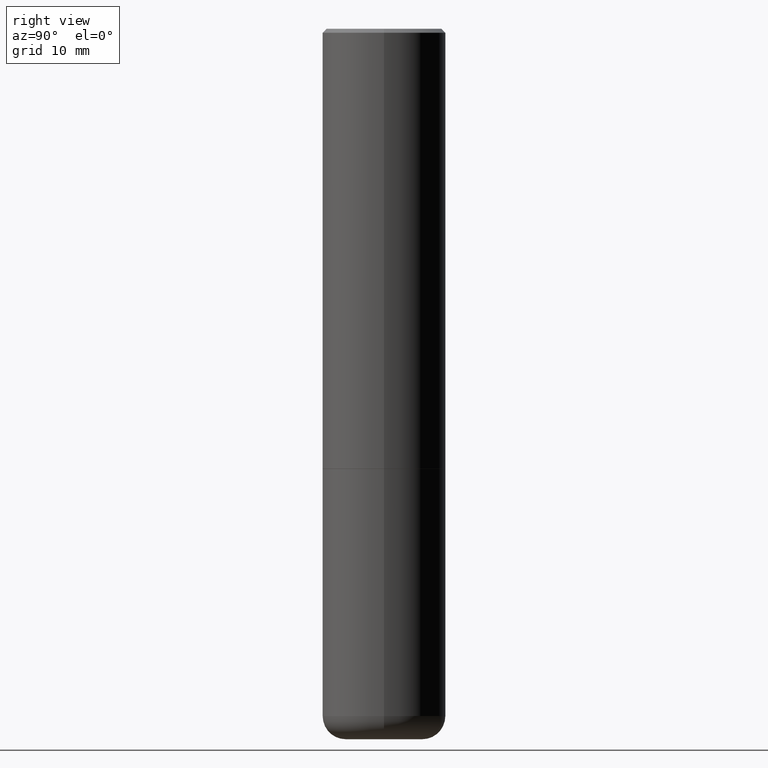
[diagram: clean part render]
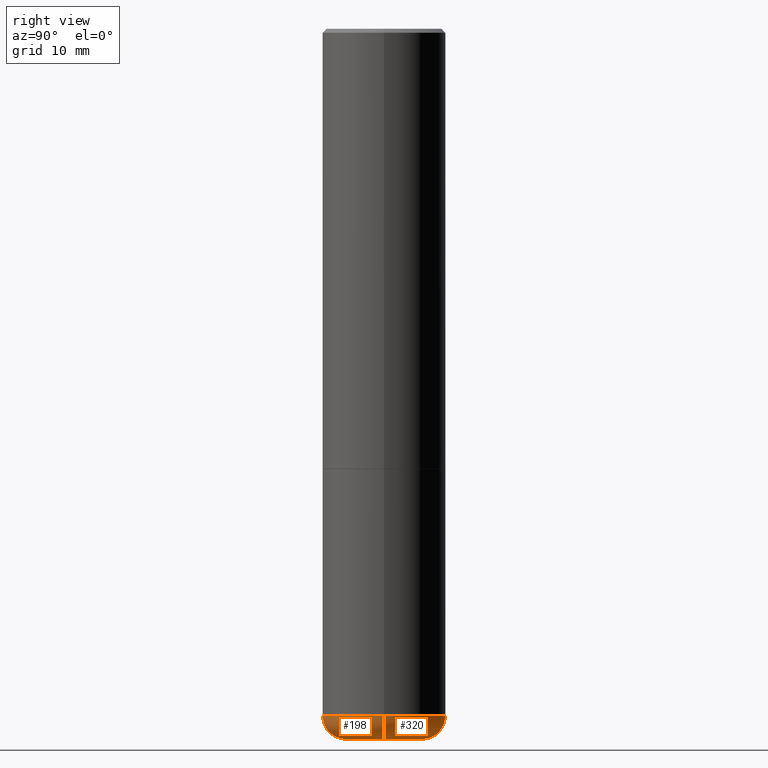
[diagram: same view with one multi-face feature highlighted, each face labeled with its STEP entity id]
A machine part, right view. The highlighted faces form ONE feature: a constant-radius fillet chain: 2 tangent blend faces with common blend radius 2.9997 mm. The faces share edges in the B-rep.
Their STEP definitions:
[1] entity #320 (Torus):
#50 = CARTESIAN_POINT ( 'NONE',  ( -0.3149499999999998967, -9.995947116896063452E-15, -3.503899999999999793 ) ) ;
#51 = VERTEX_POINT ( 'NONE', #135 ) ;
#59 = FACE_OUTER_BOUND ( 'NONE', #141, .T. ) ;
#74 = ORIENTED_EDGE ( 'NONE', *, *, #297, .T. ) ;
#88 = EDGE_CURVE ( 'NONE', #51, #202, #172, .T. ) ;
#106 = DIRECTION ( 'NONE',  ( -2.445468806185136597E-29, 3.491481338843145583E-15, 1.000000000000000000 ) ) ;
#113 = ORIENTED_EDGE ( 'NONE', *, *, #174, .T. ) ;
#118 = CARTESIAN_POINT ( 'NONE',  ( -0.1968500000000000250, -1.083509808782873928E-14, -3.503899999999999793 ) ) ;
#126 = TOROIDAL_SURFACE ( 'NONE', #393, 0.1968500000000000250, 0.1180999999999997468 ) ;
#127 = CARTESIAN_POINT ( 'NONE',  ( 8.568678149992099474E-29, -1.223380146317249786E-14, -3.503899999999999793 ) ) ;
#131 = CARTESIAN_POINT ( 'NONE',  ( 0.3149499999999998967, -1.443308555850978615E-14, -3.503899999999999793 ) ) ;
#135 = CARTESIAN_POINT ( 'NONE',  ( 0.1968500000000000250, -1.402074161239241202E-14, -3.621999999999999442 ) ) ;
#141 = EDGE_LOOP ( 'NONE', ( #74, #113, #214, #244 ) ) ;
#144 = DIRECTION ( 'NONE',  ( 1.000000000000000000, -6.982962677686267499E-15, 0.000000000000000000 ) ) ;
#147 = DIRECTION ( 'NONE',  ( 1.000000000000000000, -6.982962677686263555E-15, 0.000000000000000000 ) ) ;
#157 = DIRECTION ( 'NONE',  ( -1.000000000000000000, 7.105427357601005014E-15, 0.000000000000000000 ) ) ;
#172 = CIRCLE ( 'NONE', #404, 0.1180999999999997191 ) ;
#174 = EDGE_CURVE ( 'NONE', #179, #303, #270, .T. ) ;
#179 = VERTEX_POINT ( 'NONE', #375 ) ;
#202 = VERTEX_POINT ( 'NONE', #131 ) ;
#214 = ORIENTED_EDGE ( 'NONE', *, *, #254, .F. ) ;
#226 = DIRECTION ( 'NONE',  ( -2.445468806185136597E-29, 3.491481338843145583E-15, 1.000000000000000000 ) ) ;
#234 = AXIS2_PLACEMENT_3D ( 'NONE', #307, #341, #144 ) ;
#243 = DIRECTION ( 'NONE',  ( -6.982962677686266711E-15, -1.000000000000000000, 3.491481338843145583E-15 ) ) ;
#244 = ORIENTED_EDGE ( 'NONE', *, *, #88, .F. ) ;
#254 = EDGE_CURVE ( 'NONE', #202, #303, #378, .T. ) ;
#270 = CIRCLE ( 'NONE', #291, 0.1180999999999997191 ) ;
#274 = CARTESIAN_POINT ( 'NONE',  ( 8.568678149992099474E-29, -1.223380146317249786E-14, -3.503899999999999793 ) ) ;
#279 = CARTESIAN_POINT ( 'NONE',  ( 0.1968500000000000250, -1.360839766627503947E-14, -3.503899999999999793 ) ) ;
#291 = AXIS2_PLACEMENT_3D ( 'NONE', #118, #373, #157 ) ;
#297 = EDGE_CURVE ( 'NONE', #51, #179, #322, .T. ) ;
#303 = VERTEX_POINT ( 'NONE', #50 ) ;
#307 = CARTESIAN_POINT ( 'NONE',  ( 8.857488016002563354E-29, -1.264614540928987041E-14, -3.621999999999999442 ) ) ;
#320 = ADVANCED_FACE ( 'NONE', ( #59 ), #126, .T. ) ;
#322 = CIRCLE ( 'NONE', #234, 0.1968500000000000250 ) ;
#341 = DIRECTION ( 'NONE',  ( -2.445468806185136597E-29, 3.491481338843145583E-15, 1.000000000000000000 ) ) ;
#346 = DIRECTION ( 'NONE',  ( 1.000000000000000000, -6.982962677686269866E-15, 4.883557194083114022E-29 ) ) ;
#373 = DIRECTION ( 'NONE',  ( 7.105427357601001859E-15, 1.000000000000000000, -3.491481338843145583E-15 ) ) ;
#375 = CARTESIAN_POINT ( 'NONE',  ( -0.1968500000000000250, -1.062169457542108764E-14, -3.621999999999999442 ) ) ;
#378 = CIRCLE ( 'NONE', #415, 0.3149500000000000077 ) ;
#393 = AXIS2_PLACEMENT_3D ( 'NONE', #127, #226, #346 ) ;
#404 = AXIS2_PLACEMENT_3D ( 'NONE', #279, #243, #407 ) ;
#407 = DIRECTION ( 'NONE',  ( 1.000000000000000000, -6.982962677686273021E-15, 0.000000000000000000 ) ) ;
#415 = AXIS2_PLACEMENT_3D ( 'NONE', #274, #106, #147 ) ;
[2] entity #198 (Torus):
#25 = EDGE_CURVE ( 'NONE', #179, #51, #277, .T. ) ;
#31 = DIRECTION ( 'NONE',  ( -2.445468806185136597E-29, 3.491481338843145583E-15, 1.000000000000000000 ) ) ;
#40 = AXIS2_PLACEMENT_3D ( 'NONE', #324, #31, #318 ) ;
#50 = CARTESIAN_POINT ( 'NONE',  ( -0.3149499999999998967, -9.995947116896063452E-15, -3.503899999999999793 ) ) ;
#51 = VERTEX_POINT ( 'NONE', #135 ) ;
#55 = EDGE_LOOP ( 'NONE', ( #331, #396, #205, #223 ) ) ;
#57 = CARTESIAN_POINT ( 'NONE',  ( 8.568678149992099474E-29, -1.223380146317249786E-14, -3.503899999999999793 ) ) ;
#81 = CIRCLE ( 'NONE', #292, 0.3149500000000000077 ) ;
#88 = EDGE_CURVE ( 'NONE', #51, #202, #172, .T. ) ;
#92 = DIRECTION ( 'NONE',  ( 1.000000000000000000, -6.982962677686269866E-15, 4.883557194083114022E-29 ) ) ;
#118 = CARTESIAN_POINT ( 'NONE',  ( -0.1968500000000000250, -1.083509808782873928E-14, -3.503899999999999793 ) ) ;
#125 = TOROIDAL_SURFACE ( 'NONE', #178, 0.1968500000000000250, 0.1180999999999997468 ) ;
#128 = DIRECTION ( 'NONE',  ( -2.445468806185136597E-29, 3.491481338843145583E-15, 1.000000000000000000 ) ) ;
#131 = CARTESIAN_POINT ( 'NONE',  ( 0.3149499999999998967, -1.443308555850978615E-14, -3.503899999999999793 ) ) ;
#135 = CARTESIAN_POINT ( 'NONE',  ( 0.1968500000000000250, -1.402074161239241202E-14, -3.621999999999999442 ) ) ;
#157 = DIRECTION ( 'NONE',  ( -1.000000000000000000, 7.105427357601005014E-15, 0.000000000000000000 ) ) ;
#172 = CIRCLE ( 'NONE', #404, 0.1180999999999997191 ) ;
#174 = EDGE_CURVE ( 'NONE', #179, #303, #270, .T. ) ;
#178 = AXIS2_PLACEMENT_3D ( 'NONE', #57, #128, #92 ) ;
#179 = VERTEX_POINT ( 'NONE', #375 ) ;
#198 = ADVANCED_FACE ( 'NONE', ( #398 ), #125, .T. ) ;
#202 = VERTEX_POINT ( 'NONE', #131 ) ;
#205 = ORIENTED_EDGE ( 'NONE', *, *, #88, .T. ) ;
#223 = ORIENTED_EDGE ( 'NONE', *, *, #384, .F. ) ;
#243 = DIRECTION ( 'NONE',  ( -6.982962677686266711E-15, -1.000000000000000000, 3.491481338843145583E-15 ) ) ;
#263 = DIRECTION ( 'NONE',  ( 1.000000000000000000, -6.982962677686263555E-15, 0.000000000000000000 ) ) ;
#270 = CIRCLE ( 'NONE', #291, 0.1180999999999997191 ) ;
#277 = CIRCLE ( 'NONE', #40, 0.1968500000000000250 ) ;
#279 = CARTESIAN_POINT ( 'NONE',  ( 0.1968500000000000250, -1.360839766627503947E-14, -3.503899999999999793 ) ) ;
#291 = AXIS2_PLACEMENT_3D ( 'NONE', #118, #373, #157 ) ;
#292 = AXIS2_PLACEMENT_3D ( 'NONE', #294, #418, #263 ) ;
#294 = CARTESIAN_POINT ( 'NONE',  ( 8.568678149992099474E-29, -1.223380146317249786E-14, -3.503899999999999793 ) ) ;
#303 = VERTEX_POINT ( 'NONE', #50 ) ;
#318 = DIRECTION ( 'NONE',  ( 1.000000000000000000, -6.982962677686267499E-15, 0.000000000000000000 ) ) ;
#324 = CARTESIAN_POINT ( 'NONE',  ( 8.857488016002563354E-29, -1.264614540928987041E-14, -3.621999999999999442 ) ) ;
#331 = ORIENTED_EDGE ( 'NONE', *, *, #174, .F. ) ;
#373 = DIRECTION ( 'NONE',  ( 7.105427357601001859E-15, 1.000000000000000000, -3.491481338843145583E-15 ) ) ;
#375 = CARTESIAN_POINT ( 'NONE',  ( -0.1968500000000000250, -1.062169457542108764E-14, -3.621999999999999442 ) ) ;
#384 = EDGE_CURVE ( 'NONE', #303, #202, #81, .T. ) ;
#396 = ORIENTED_EDGE ( 'NONE', *, *, #25, .T. ) ;
#398 = FACE_OUTER_BOUND ( 'NONE', #55, .T. ) ;
#404 = AXIS2_PLACEMENT_3D ( 'NONE', #279, #243, #407 ) ;
#407 = DIRECTION ( 'NONE',  ( 1.000000000000000000, -6.982962677686273021E-15, 0.000000000000000000 ) ) ;
#418 = DIRECTION ( 'NONE',  ( -2.445468806185136597E-29, 3.491481338843145583E-15, 1.000000000000000000 ) ) ;